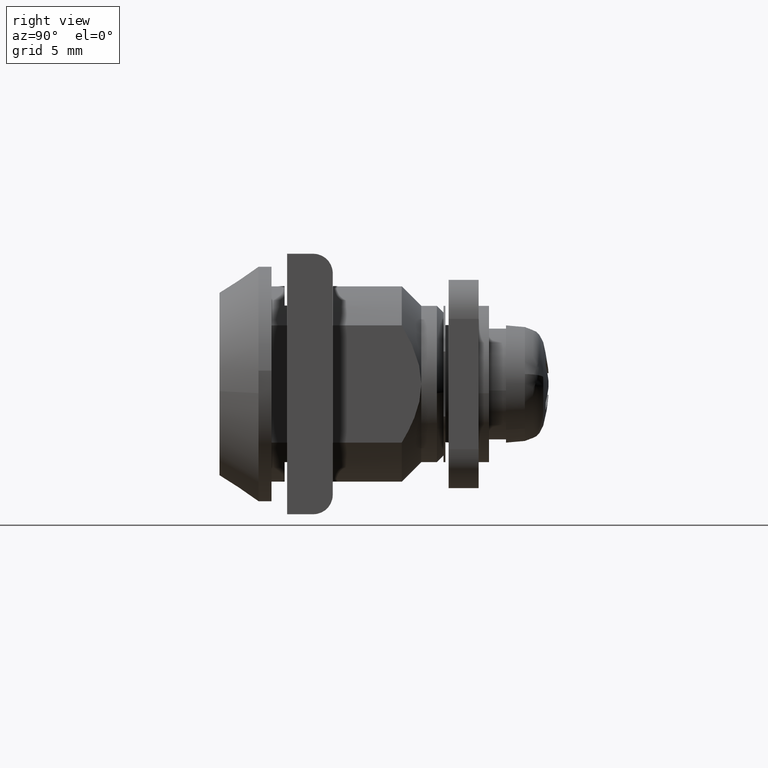
[diagram: clean part render]
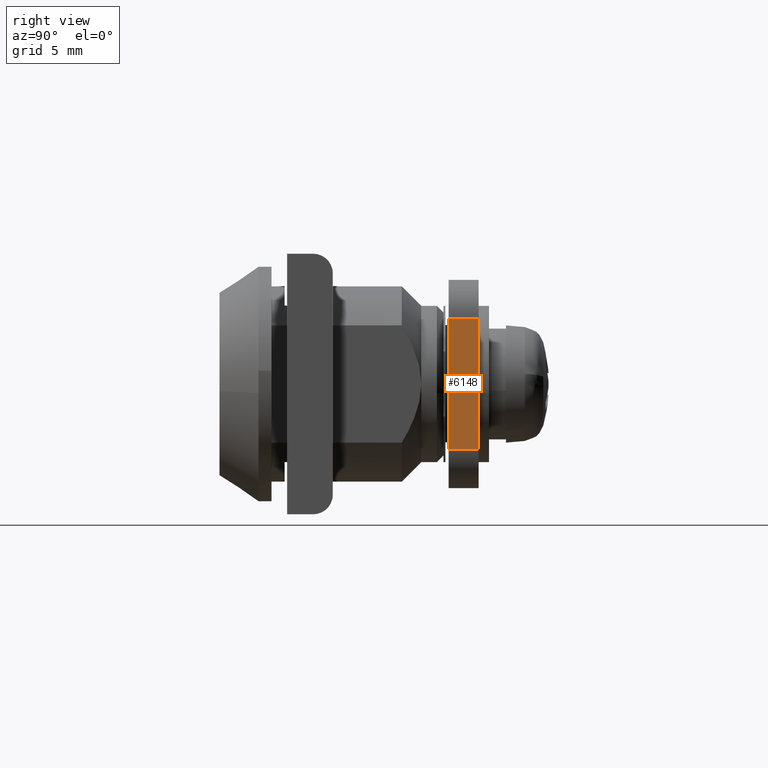
[diagram: same view with one face highlighted and labeled with its STEP entity id]
A machine part, right view. The second image highlights one B-rep face of the part: STEP entity #6148.
In plain terms, the highlighted face is a freeform B-spline surface patch.
Its self-contained STEP definition (entity closure, byte-faithful):
#5764=CARTESIAN_POINT('',(8.0,17.600000000000001,-5.0));
#5765=VERTEX_POINT('',#5764);
#5779=CARTESIAN_POINT('',(8.0,17.600000000000001,5.0));
#5780=VERTEX_POINT('',#5779);
#5781=CARTESIAN_POINT('',(8.0,17.600000000000001,-5.0));
#5782=CARTESIAN_POINT('',(8.0,17.600000000000001,5.0));
#5783=QUASI_UNIFORM_CURVE('',1,(#5781,#5782),.UNSPECIFIED.,.F.,.U.);
#5784=EDGE_CURVE('',#5765,#5780,#5783,.T.);
#5934=CARTESIAN_POINT('',(8.0,19.899999999999999,5.0));
#5935=VERTEX_POINT('',#5934);
#5949=CARTESIAN_POINT('',(8.0,19.899999999999999,-5.0));
#5950=VERTEX_POINT('',#5949);
#5951=CARTESIAN_POINT('',(8.0,19.899999999999999,-5.0));
#5952=CARTESIAN_POINT('',(8.0,19.899999999999999,5.0));
#5953=QUASI_UNIFORM_CURVE('',1,(#5951,#5952),.UNSPECIFIED.,.F.,.U.);
#5954=EDGE_CURVE('',#5950,#5935,#5953,.T.);
#6123=CARTESIAN_POINT('',(8.0,19.899999999999999,5.0));
#6124=CARTESIAN_POINT('',(8.0,17.600000000000001,5.0));
#6125=QUASI_UNIFORM_CURVE('',1,(#6123,#6124),.UNSPECIFIED.,.F.,.U.);
#6126=EDGE_CURVE('',#5935,#5780,#6125,.T.);
#6133=CARTESIAN_POINT('',(8.0,17.485115417743071,5.499499980618060));
#6134=CARTESIAN_POINT('',(8.0,17.485115417743071,-5.499500248838961));
#6135=CARTESIAN_POINT('',(8.0,20.014884520566131,5.499499980618060));
#6136=CARTESIAN_POINT('',(8.0,20.014884520566131,-5.499500248838961));
#6137=B_SPLINE_SURFACE_WITH_KNOTS('',1,1,((#6133,#6135),(#6134,#6136)),.UNSPECIFIED.,.F.,.F.,.U.,(2,2),(2,2),(0.0,10.999000229457019),(0.0,2.529769102823057),.UNSPECIFIED.);
#6138=ORIENTED_EDGE('',*,*,#5784,.F.);
#6139=CARTESIAN_POINT('',(8.0,19.899999999999999,-5.0));
#6140=CARTESIAN_POINT('',(8.0,17.600000000000001,-5.0));
#6141=QUASI_UNIFORM_CURVE('',1,(#6139,#6140),.UNSPECIFIED.,.F.,.U.);
#6142=EDGE_CURVE('',#5950,#5765,#6141,.T.);
#6143=ORIENTED_EDGE('',*,*,#6142,.F.);
#6144=ORIENTED_EDGE('',*,*,#5954,.T.);
#6145=ORIENTED_EDGE('',*,*,#6126,.T.);
#6146=EDGE_LOOP('',(#6138,#6143,#6144,#6145));
#6147=FACE_OUTER_BOUND('',#6146,.T.);
#6148=ADVANCED_FACE('',(#6147),#6137,.T.);